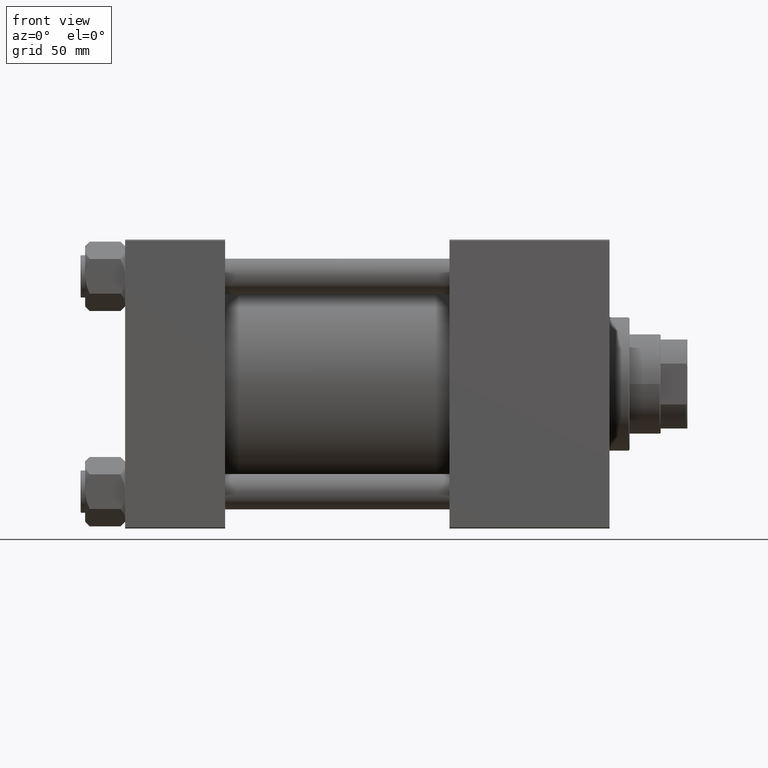
[diagram: clean part render]
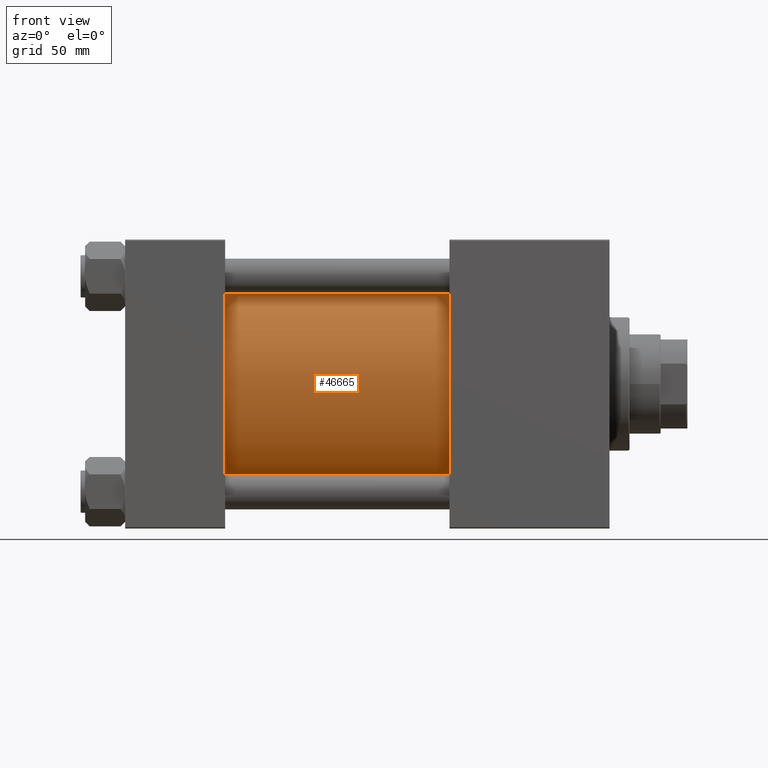
[diagram: same view with one face highlighted and labeled with its STEP entity id]
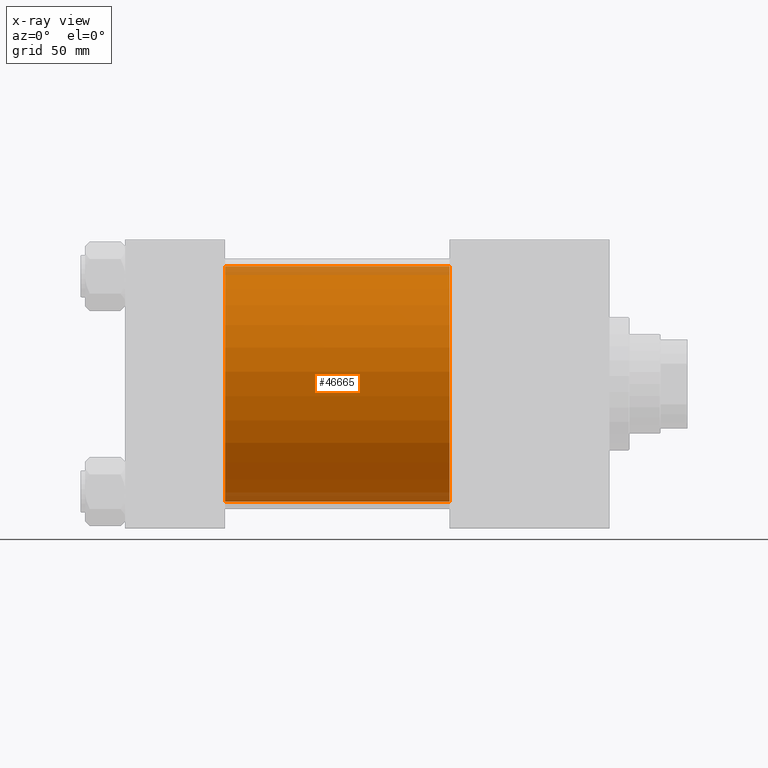
[diagram: x-ray of the same camera — body ghosted, the highlighted face saturated]
A machine part, front view. The second image highlights one B-rep face of the part: STEP entity #46665.
The next image is the same camera in x-ray: the body ghosted, the highlighted face saturated — about 8% of this face is hidden behind the body in this view.
In plain terms, the highlighted cylindrical surface (partial cylindrical patch) has radius 53 mm, axis along (-1, -0, -0).
Its self-contained STEP definition (entity closure, byte-faithful):
#130 = ORIENTED_EDGE ( 'NONE', *, *, #7015, .T. ) ;
#1730 = EDGE_LOOP ( 'NONE', ( #15467, #50450, #130, #25709 ) ) ;
#3233 = VERTEX_POINT ( 'NONE', #15258 ) ;
#3753 = DIRECTION ( 'NONE',  ( -1.000000000000000000, -0.000000000000000000, -0.000000000000000000 ) ) ;
#3904 = DIRECTION ( 'NONE',  ( 0.000000000000000000, 0.000000000000000000, -1.000000000000000000 ) ) ;
#4068 = DIRECTION ( 'NONE',  ( -1.000000000000000000, -0.000000000000000000, -0.000000000000000000 ) ) ;
#4197 = CARTESIAN_POINT ( 'NONE',  ( 146.0000000000000284, 3.888542821515762466E-15, -53.00000000000000711 ) ) ;
#5209 = DIRECTION ( 'NONE',  ( 0.000000000000000000, 0.000000000000000000, 1.000000000000000000 ) ) ;
#7015 = EDGE_CURVE ( 'NONE', #3233, #31515, #20498, .T. ) ;
#7575 = CARTESIAN_POINT ( 'NONE',  ( 146.0000000000000284, 3.888542821515762466E-15, -53.00000000000000711 ) ) ;
#8116 = FACE_OUTER_BOUND ( 'NONE', #1730, .T. ) ;
#8833 = EDGE_CURVE ( 'NONE', #3233, #41166, #39533, .T. ) ;
#9301 = EDGE_CURVE ( 'NONE', #31515, #28762, #38720, .T. ) ;
#15247 = CARTESIAN_POINT ( 'NONE',  ( 45.00000000000000000, -2.602085213965210642E-15, 53.00000000000000711 ) ) ;
#15258 = CARTESIAN_POINT ( 'NONE',  ( 146.0000000000000284, -2.602085213965210642E-15, 53.00000000000000711 ) ) ;
#15467 = ORIENTED_EDGE ( 'NONE', *, *, #35799, .F. ) ;
#16561 = AXIS2_PLACEMENT_3D ( 'NONE', #28213, #32304, #43909 ) ;
#20082 = DIRECTION ( 'NONE',  ( 1.000000000000000000, 0.000000000000000000, 0.000000000000000000 ) ) ;
#20498 = LINE ( 'NONE', #24846, #49352 ) ;
#22587 = VECTOR ( 'NONE', #29025, 1000.000000000000000 ) ;
#24846 = CARTESIAN_POINT ( 'NONE',  ( 146.0000000000000284, -2.602085213965210642E-15, 53.00000000000000711 ) ) ;
#25277 = AXIS2_PLACEMENT_3D ( 'NONE', #38953, #3753, #5209 ) ;
#25709 = ORIENTED_EDGE ( 'NONE', *, *, #9301, .T. ) ;
#26333 = CARTESIAN_POINT ( 'NONE',  ( 45.00000000000000000, 3.888542821515762466E-15, -53.00000000000000711 ) ) ;
#28213 = CARTESIAN_POINT ( 'NONE',  ( 45.00000000000000000, -2.602085213965210642E-15, 0.000000000000000000 ) ) ;
#28762 = VERTEX_POINT ( 'NONE', #26333 ) ;
#29025 = DIRECTION ( 'NONE',  ( -1.000000000000000000, -0.000000000000000000, -0.000000000000000000 ) ) ;
#31515 = VERTEX_POINT ( 'NONE', #15247 ) ;
#32304 = DIRECTION ( 'NONE',  ( 1.000000000000000000, -0.000000000000000000, 0.000000000000000000 ) ) ;
#35799 = EDGE_CURVE ( 'NONE', #41166, #28762, #48324, .T. ) ;
#37911 = AXIS2_PLACEMENT_3D ( 'NONE', #42960, #20082, #3904 ) ;
#38720 = CIRCLE ( 'NONE', #16561, 53.00000000000000711 ) ;
#38953 = CARTESIAN_POINT ( 'NONE',  ( 146.0000000000000284, -2.602085213965210642E-15, 0.000000000000000000 ) ) ;
#39533 = CIRCLE ( 'NONE', #37911, 53.00000000000000711 ) ;
#40407 = CYLINDRICAL_SURFACE ( 'NONE', #25277, 53.00000000000000711 ) ;
#41166 = VERTEX_POINT ( 'NONE', #7575 ) ;
#42960 = CARTESIAN_POINT ( 'NONE',  ( 146.0000000000000284, -2.602085213965210642E-15, 0.000000000000000000 ) ) ;
#43909 = DIRECTION ( 'NONE',  ( 0.000000000000000000, 0.000000000000000000, 1.000000000000000000 ) ) ;
#46665 = ADVANCED_FACE ( 'NONE', ( #8116 ), #40407, .T. ) ;
#48324 = LINE ( 'NONE', #4197, #22587 ) ;
#49352 = VECTOR ( 'NONE', #4068, 1000.000000000000000 ) ;
#50450 = ORIENTED_EDGE ( 'NONE', *, *, #8833, .F. ) ;